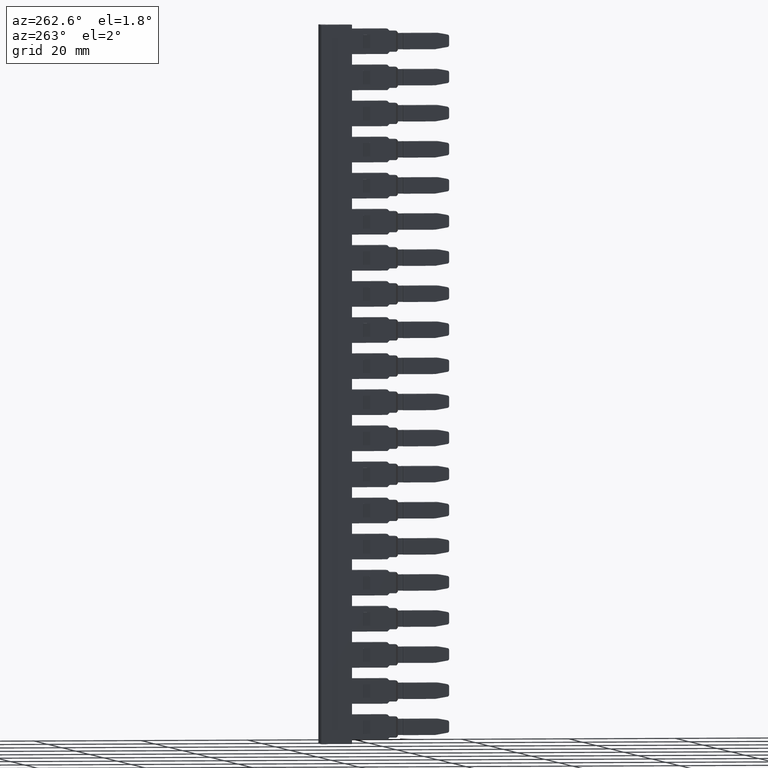
[diagram: clean part render]
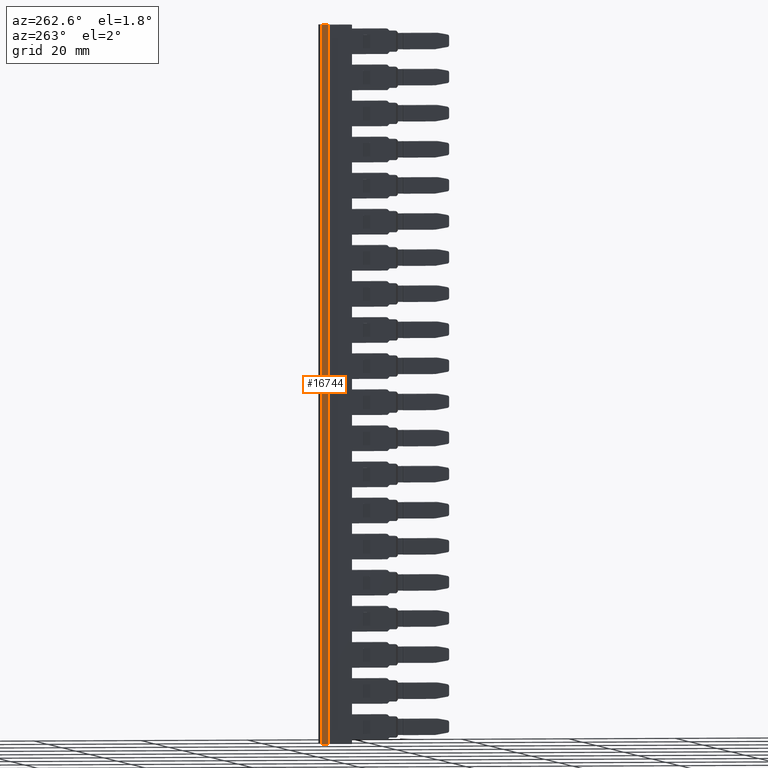
[diagram: same view with one face highlighted and labeled with its STEP entity id]
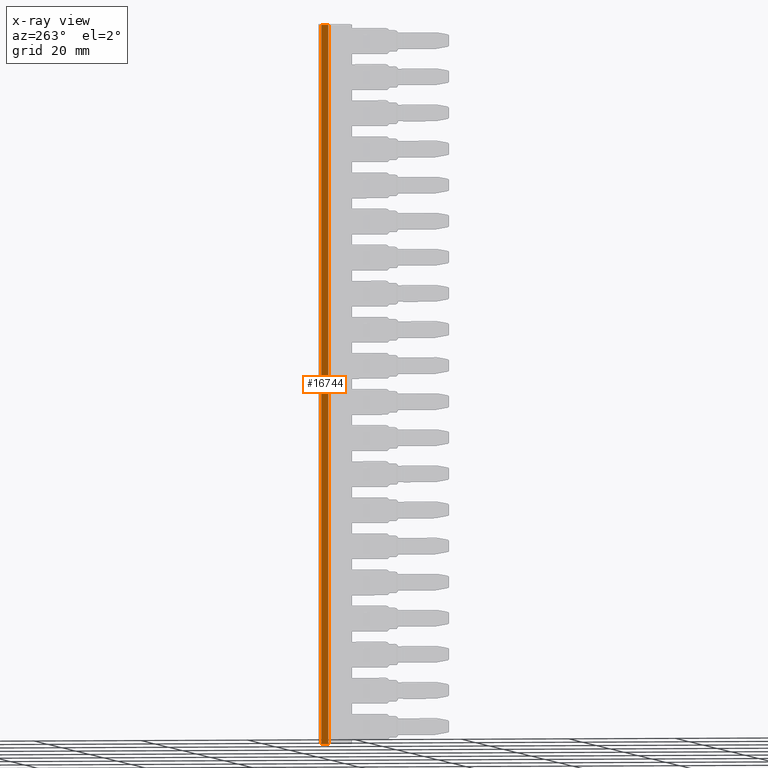
[diagram: x-ray of the same camera — body ghosted, the highlighted face saturated]
A machine part, auxiliary view. The second image highlights one B-rep face of the part: STEP entity #16744.
The next image is the same camera in x-ray: the body ghosted, the highlighted face saturated — about 0% of this face is hidden behind the body in this view.
In plain terms, the highlighted planar face has unit normal (-1, -0, 0).
Its self-contained STEP definition (entity closure, byte-faithful):
#258 = VECTOR ( 'NONE', #13041, 1000.000000000000200 ) ;
#273 = VECTOR ( 'NONE', #13462, 1000.000000000000000 ) ;
#302 = VECTOR ( 'NONE', #13504, 1000.000000000000000 ) ;
#319 = VECTOR ( 'NONE', #13172, 1000.000000000000000 ) ;
#361 = AXIS2_PLACEMENT_3D ( 'NONE', #11929, #11897, #11908 ) ;
#7560 = EDGE_CURVE ( 'NONE', #12811, #12874, #13047, .T. ) ;
#7575 = EDGE_CURVE ( 'NONE', #12866, #12811, #13054, .T. ) ;
#7620 = EDGE_CURVE ( 'NONE', #12874, #12971, #13546, .T. ) ;
#7622 = EDGE_CURVE ( 'NONE', #12971, #12866, #13508, .T. ) ;
#9578 = EDGE_LOOP ( 'NONE', ( #22247, #22211, #22263, #22256 ) ) ;
#11897 = DIRECTION ( 'NONE',  ( -0.9999999999550283100, -9.483855538397652600E-006, 0.0000000000000000000 ) ) ;
#11904 = FACE_OUTER_BOUND ( 'NONE', #9578, .T. ) ;
#11908 = DIRECTION ( 'NONE',  ( 9.483855538397650900E-006, -0.9999999999550282000, 0.0000000000000000000 ) ) ;
#11929 = CARTESIAN_POINT ( 'NONE',  ( 1389.982440319694000, 1077.957125338257100, 9.800000000002379300 ) ) ;
#11935 = PLANE ( 'NONE',  #361 ) ;
#12811 = VERTEX_POINT ( 'NONE', #14669 ) ;
#12866 = VERTEX_POINT ( 'NONE', #14805 ) ;
#12874 = VERTEX_POINT ( 'NONE', #14833 ) ;
#12971 = VERTEX_POINT ( 'NONE', #14968 ) ;
#13041 = DIRECTION ( 'NONE',  ( 9.483855538397650900E-006, -0.9999999999550282000, 3.252725052651167200E-020 ) ) ;
#13047 = LINE ( 'NONE', #13123, #258 ) ;
#13054 = LINE ( 'NONE', #13221, #319 ) ;
#13123 = CARTESIAN_POINT ( 'NONE',  ( 1389.982441742596200, 1077.807091196338200, -123.6999999999424200 ) ) ;
#13172 = DIRECTION ( 'NONE',  ( -5.379506506941585200E-033, 5.672277993817434100E-028, -1.000000000000000000 ) ) ;
#13221 = CARTESIAN_POINT ( 'NONE',  ( 1389.982440319639900, 1077.957131028572100, 63.60600222243470400 ) ) ;
#13462 = DIRECTION ( 'NONE',  ( -9.483855531255291200E-006, 0.9999999999550282000, -3.252725050579457000E-020 ) ) ;
#13504 = DIRECTION ( 'NONE',  ( -4.994247534287630000E-019, 5.266051885588753300E-014, 1.000000000000000000 ) ) ;
#13506 = CARTESIAN_POINT ( 'NONE',  ( 1389.982452649029900, 1076.657091196431100, -38.31585598421686700 ) ) ;
#13508 = LINE ( 'NONE', #13540, #273 ) ;
#13540 = CARTESIAN_POINT ( 'NONE',  ( 1389.982440319639900, 1077.957131028569800, 9.800000000002381000 ) ) ;
#13546 = LINE ( 'NONE', #13506, #302 ) ;
#14669 = CARTESIAN_POINT ( 'NONE',  ( 1389.982440319639900, 1077.957131028532100, -123.6999999999424200 ) ) ;
#14805 = CARTESIAN_POINT ( 'NONE',  ( 1389.982440319639900, 1077.957131028569800, 9.800000000002381000 ) ) ;
#14833 = CARTESIAN_POINT ( 'NONE',  ( 1389.982452649029900, 1076.657091196394000, -123.6999999999422900 ) ) ;
#14968 = CARTESIAN_POINT ( 'NONE',  ( 1389.982452649029900, 1076.657091196431100, 9.800000000002381000 ) ) ;
#16744 = ADVANCED_FACE ( 'NONE', ( #11904 ), #11935, .T. ) ;
#22211 = ORIENTED_EDGE ( 'NONE', *, *, #7560, .T. ) ;
#22247 = ORIENTED_EDGE ( 'NONE', *, *, #7575, .T. ) ;
#22256 = ORIENTED_EDGE ( 'NONE', *, *, #7622, .T. ) ;
#22263 = ORIENTED_EDGE ( 'NONE', *, *, #7620, .T. ) ;